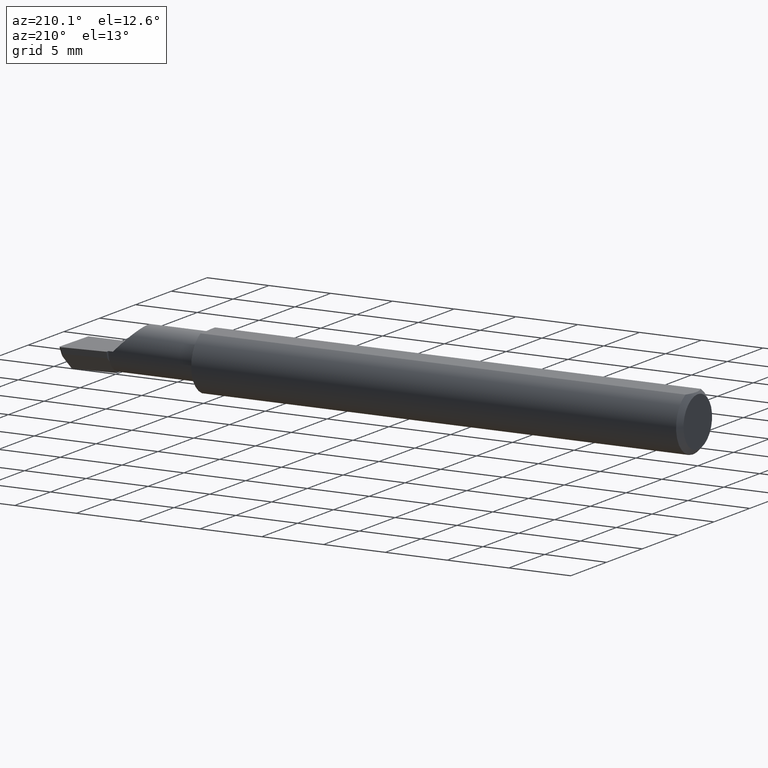
[diagram: clean part render]
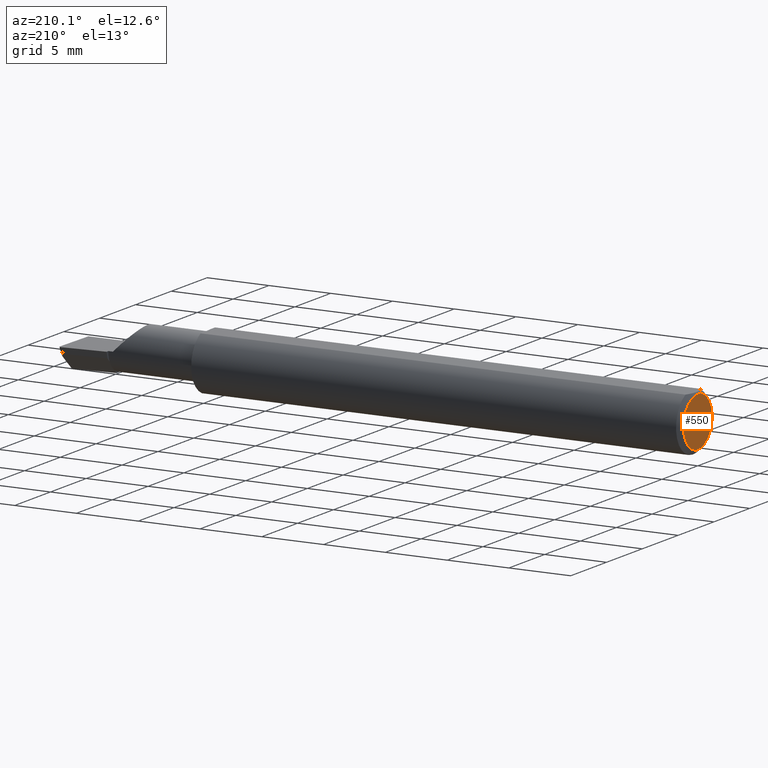
[diagram: same view with one face highlighted and labeled with its STEP entity id]
A machine part, auxiliary view. The second image highlights one B-rep face of the part: STEP entity #550.
In plain terms, the highlighted planar face has unit normal (1, 0, 0).
Its self-contained STEP definition (entity closure, byte-faithful):
#9 = EDGE_CURVE ( 'NONE', #21, #139, #243, .T. ) ;
#11 = DIRECTION ( 'NONE',  ( 0.0000000000000000000, 0.0000000000000000000, -1.000000000000000000 ) ) ;
#21 = VERTEX_POINT ( 'NONE', #395 ) ;
#63 = PLANE ( 'NONE',  #295 ) ;
#98 = EDGE_CURVE ( 'NONE', #139, #21, #508, .T. ) ;
#101 = DIRECTION ( 'NONE',  ( -1.000000000000000000, -0.0000000000000000000, -0.0000000000000000000 ) ) ;
#131 = AXIS2_PLACEMENT_3D ( 'NONE', #144, #101, #197 ) ;
#139 = VERTEX_POINT ( 'NONE', #570 ) ;
#144 = CARTESIAN_POINT ( 'NONE',  ( 0.0000000000000000000, 0.0000000000000000000, 0.0000000000000000000 ) ) ;
#185 = AXIS2_PLACEMENT_3D ( 'NONE', #246, #546, #558 ) ;
#197 = DIRECTION ( 'NONE',  ( 0.0000000000000000000, 0.0000000000000000000, 1.000000000000000000 ) ) ;
#204 = ORIENTED_EDGE ( 'NONE', *, *, #98, .T. ) ;
#228 = DIRECTION ( 'NONE',  ( 1.000000000000000000, 0.0000000000000000000, 0.0000000000000000000 ) ) ;
#243 = CIRCLE ( 'NONE', #185, 0.07859999999999965625 ) ;
#246 = CARTESIAN_POINT ( 'NONE',  ( 0.0000000000000000000, 0.0000000000000000000, 0.0000000000000000000 ) ) ;
#277 = ORIENTED_EDGE ( 'NONE', *, *, #9, .T. ) ;
#295 = AXIS2_PLACEMENT_3D ( 'NONE', #415, #228, #11 ) ;
#395 = CARTESIAN_POINT ( 'NONE',  ( 0.0000000000000000000, 1.054420894065869177E-17, 0.07859999999999965625 ) ) ;
#415 = CARTESIAN_POINT ( 'NONE',  ( 0.0000000000000000000, 0.0000000000000000000, 0.0000000000000000000 ) ) ;
#503 = FACE_OUTER_BOUND ( 'NONE', #663, .T. ) ;
#508 = CIRCLE ( 'NONE', #131, 0.07859999999999965625 ) ;
#546 = DIRECTION ( 'NONE',  ( -1.000000000000000000, -0.0000000000000000000, -0.0000000000000000000 ) ) ;
#550 = ADVANCED_FACE ( 'NONE', ( #503 ), #63, .F. ) ;
#558 = DIRECTION ( 'NONE',  ( 0.0000000000000000000, 0.0000000000000000000, 1.000000000000000000 ) ) ;
#570 = CARTESIAN_POINT ( 'NONE',  ( 0.0000000000000000000, 0.0000000000000000000, -0.07859999999999965625 ) ) ;
#663 = EDGE_LOOP ( 'NONE', ( #204, #277 ) ) ;